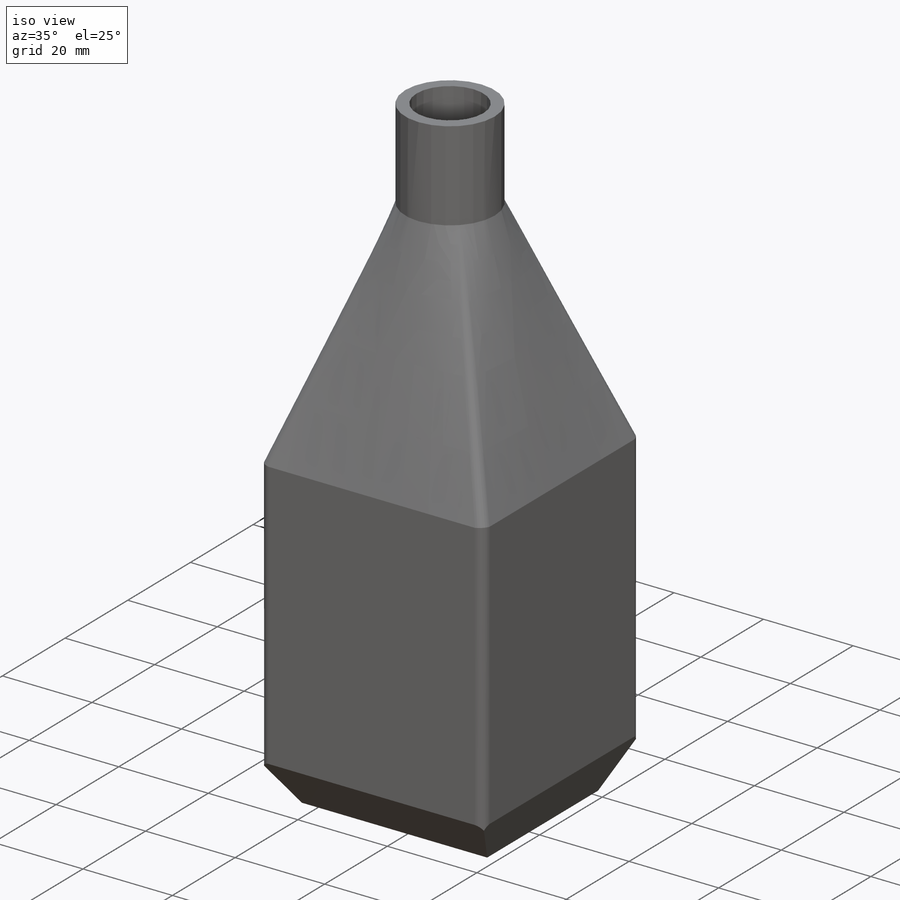
[diagram: iso view]
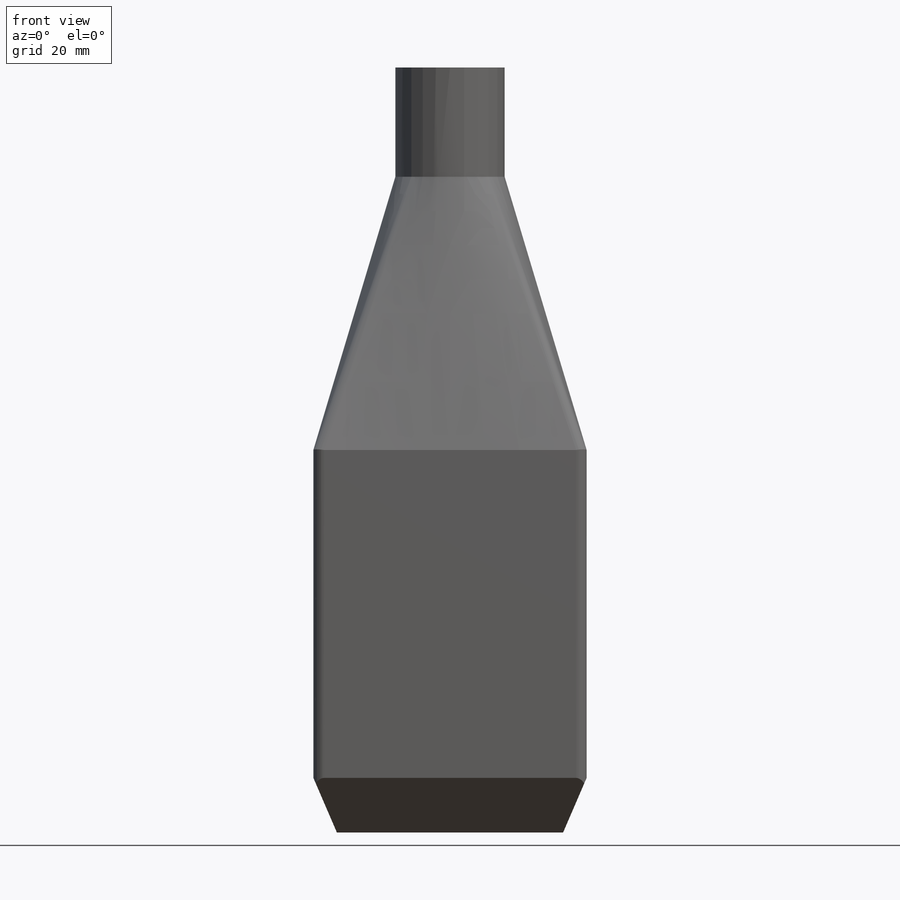
[diagram: front view]
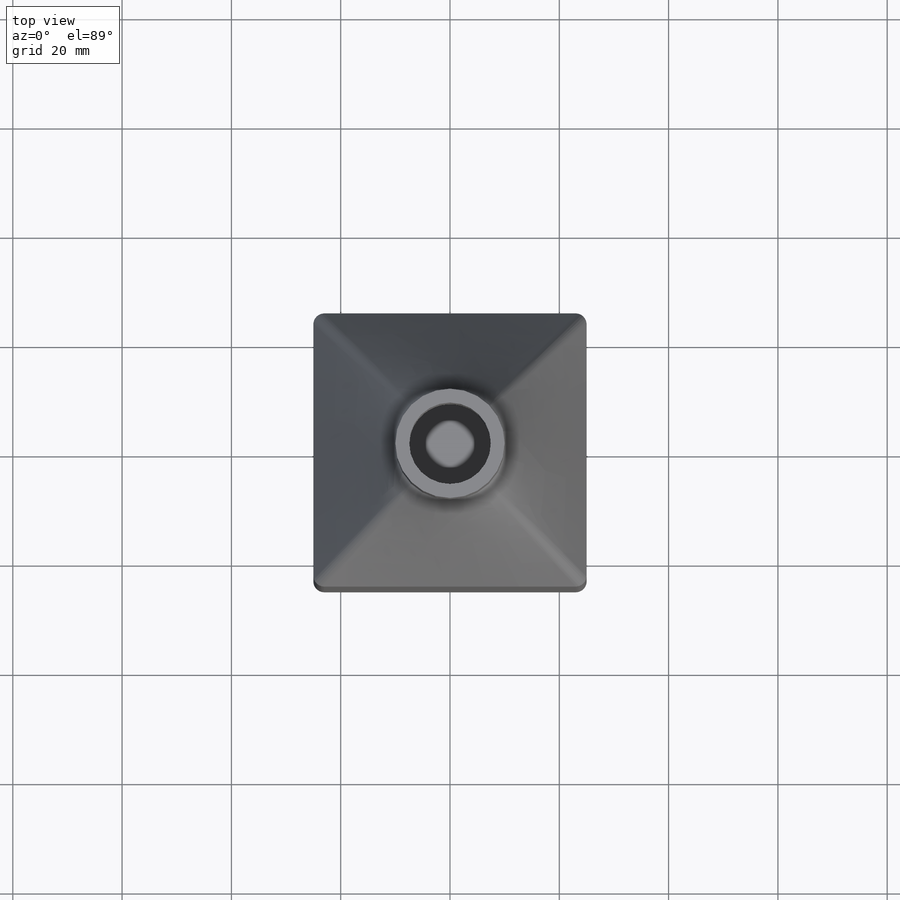
[diagram: top view]
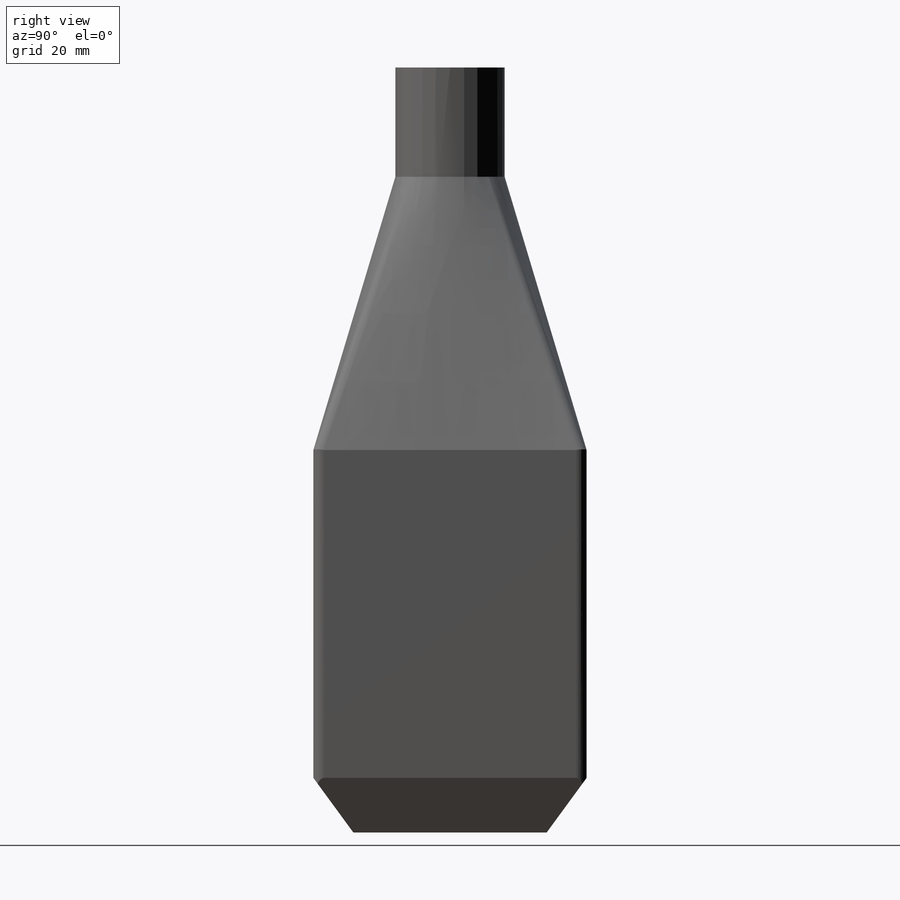
[diagram: right view]
SOLIDWORKS PART (.sldprt)
format: sldprt  version: not decoded by parser v0  size: 291,840 bytes
history: native  units: mm
features: sketch x5, shell x4, plane x2, extrude x2, material x1 (+12 scaffold rows collapsed)
feature tree (26):
  scaffold x12  (default folders/planes/origin — collapsed)
  material  "Material <not specified>"
  sketch  "Sketch1"  dims[D1=50.0mm D2=50.0mm]
  plane  "Plane1"  Offset=50mm
  sketch  "Sketch2"  dims[D1=20.0mm]
  sketch  "Sketch3"  dims[D1=0.0mm]
  extrude  "Boss-Extrude1"  Depth=20mm
  sketch  "Sketch4"  dims[D1=0.0mm]
  extrude  "Boss-Extrude2"  Depth=60mm
  plane  "Plane2"  Offset=10mm
  sketch  "Sketch5"
  shell  "Shell2"  Thickness=2.54mm
  shell  "VarFillet3"  Thickness=2mm
  shell  "VarFillet4"  Thickness=2mm
  shell  "VarFillet5"  Thickness=2mm
decode coverage: 10 of 11 modeling features carry decoded parameters
note: suppression state not decoded; provenance and decode notes live in map.json
